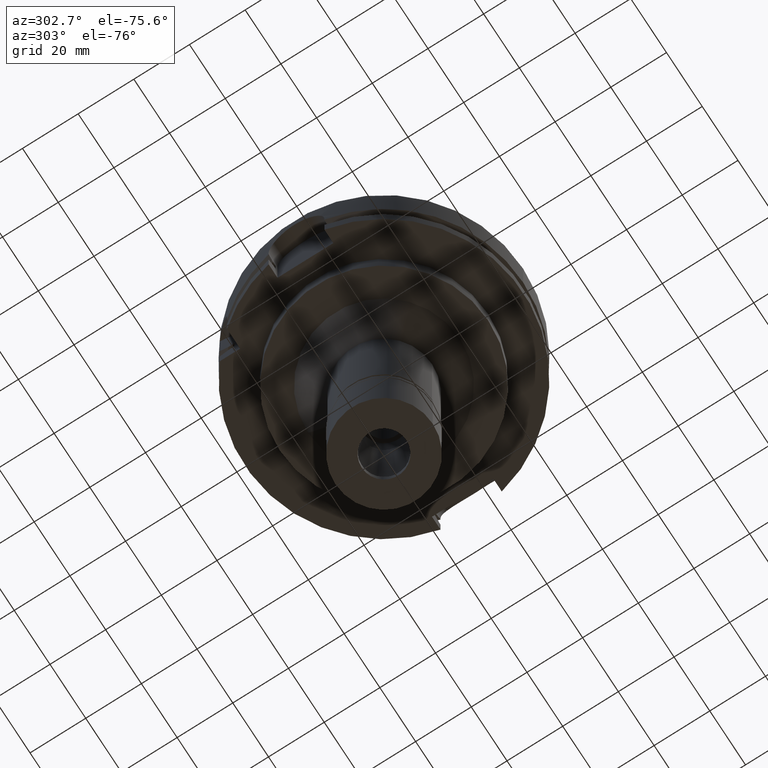
[diagram: clean part render]
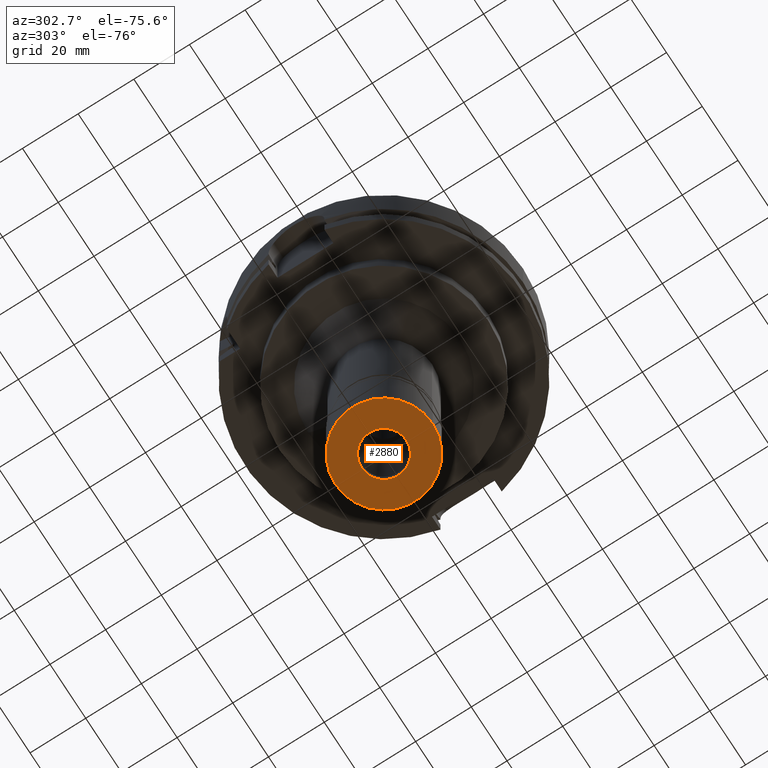
[diagram: same view with one face highlighted and labeled with its STEP entity id]
A machine part, auxiliary view. The second image highlights one B-rep face of the part: STEP entity #2880.
In plain terms, the highlighted planar face has unit normal (0, 0, -1).
Its self-contained STEP definition (entity closure, byte-faithful):
#98 = DIRECTION ( 'NONE',  ( 0.0000000000000000000, -1.000000000000000000, 0.0000000000000000000 ) ) ;
#111 = EDGE_LOOP ( 'NONE', ( #950, #4279 ) ) ;
#194 = VERTEX_POINT ( 'NONE', #3217 ) ;
#281 = CARTESIAN_POINT ( 'NONE',  ( 0.0000000000000000000, 0.0000000000000000000, -26.70000000000000284 ) ) ;
#327 = ORIENTED_EDGE ( 'NONE', *, *, #787, .F. ) ;
#343 = EDGE_LOOP ( 'NONE', ( #4559, #327 ) ) ;
#787 = EDGE_CURVE ( 'NONE', #4489, #3062, #3520, .T. ) ;
#950 = ORIENTED_EDGE ( 'NONE', *, *, #4269, .F. ) ;
#1062 = DIRECTION ( 'NONE',  ( 0.0000000000000000000, 0.0000000000000000000, -1.000000000000000000 ) ) ;
#1268 = DIRECTION ( 'NONE',  ( 0.0000000000000000000, 0.0000000000000000000, -1.000000000000000000 ) ) ;
#1381 = CIRCLE ( 'NONE', #4507, 17.50000000000000000 ) ;
#1515 = FACE_OUTER_BOUND ( 'NONE', #111, .T. ) ;
#1656 = AXIS2_PLACEMENT_3D ( 'NONE', #3809, #1268, #5161 ) ;
#1726 = DIRECTION ( 'NONE',  ( 0.0000000000000000000, 1.000000000000000000, 0.0000000000000000000 ) ) ;
#1798 = CARTESIAN_POINT ( 'NONE',  ( 0.0000000000000000000, 8.000000000000000000, -26.70000000000000284 ) ) ;
#1816 = CARTESIAN_POINT ( 'NONE',  ( 0.0000000000000000000, -8.000000000000000000, -26.70000000000000284 ) ) ;
#2135 = CARTESIAN_POINT ( 'NONE',  ( 0.0000000000000000000, -17.50000000000000000, -26.70000000000000284 ) ) ;
#2138 = EDGE_CURVE ( 'NONE', #3062, #4489, #2278, .T. ) ;
#2203 = CIRCLE ( 'NONE', #3617, 17.50000000000000000 ) ;
#2278 = CIRCLE ( 'NONE', #1656, 8.000000000000000000 ) ;
#2404 = DIRECTION ( 'NONE',  ( 0.0000000000000000000, -1.000000000000000000, 0.0000000000000000000 ) ) ;
#2588 = EDGE_CURVE ( 'NONE', #2985, #194, #2203, .T. ) ;
#2614 = DIRECTION ( 'NONE',  ( 0.0000000000000000000, 0.0000000000000000000, 1.000000000000000000 ) ) ;
#2880 = ADVANCED_FACE ( 'NONE', ( #1515, #3204 ), #5160, .T. ) ;
#2985 = VERTEX_POINT ( 'NONE', #2135 ) ;
#3000 = CARTESIAN_POINT ( 'NONE',  ( 0.0000000000000000000, 0.0000000000000000000, -26.70000000000000284 ) ) ;
#3062 = VERTEX_POINT ( 'NONE', #1798 ) ;
#3204 = FACE_BOUND ( 'NONE', #343, .T. ) ;
#3217 = CARTESIAN_POINT ( 'NONE',  ( 0.0000000000000000000, 17.50000000000000000, -26.70000000000000284 ) ) ;
#3520 = CIRCLE ( 'NONE', #4786, 8.000000000000000000 ) ;
#3617 = AXIS2_PLACEMENT_3D ( 'NONE', #281, #5431, #2404 ) ;
#3809 = CARTESIAN_POINT ( 'NONE',  ( 0.0000000000000000000, 0.0000000000000000000, -26.70000000000000284 ) ) ;
#3982 = AXIS2_PLACEMENT_3D ( 'NONE', #3000, #4732, #98 ) ;
#4269 = EDGE_CURVE ( 'NONE', #194, #2985, #1381, .T. ) ;
#4279 = ORIENTED_EDGE ( 'NONE', *, *, #2588, .F. ) ;
#4470 = DIRECTION ( 'NONE',  ( 0.0000000000000000000, -1.000000000000000000, 0.0000000000000000000 ) ) ;
#4489 = VERTEX_POINT ( 'NONE', #1816 ) ;
#4507 = AXIS2_PLACEMENT_3D ( 'NONE', #4787, #2614, #1726 ) ;
#4559 = ORIENTED_EDGE ( 'NONE', *, *, #2138, .F. ) ;
#4732 = DIRECTION ( 'NONE',  ( 0.0000000000000000000, 0.0000000000000000000, -1.000000000000000000 ) ) ;
#4786 = AXIS2_PLACEMENT_3D ( 'NONE', #5418, #1062, #4470 ) ;
#4787 = CARTESIAN_POINT ( 'NONE',  ( 0.0000000000000000000, 0.0000000000000000000, -26.70000000000000284 ) ) ;
#5160 = PLANE ( 'NONE',  #3982 ) ;
#5161 = DIRECTION ( 'NONE',  ( 0.0000000000000000000, 1.000000000000000000, 0.0000000000000000000 ) ) ;
#5418 = CARTESIAN_POINT ( 'NONE',  ( 0.0000000000000000000, 0.0000000000000000000, -26.70000000000000284 ) ) ;
#5431 = DIRECTION ( 'NONE',  ( 0.0000000000000000000, 0.0000000000000000000, 1.000000000000000000 ) ) ;